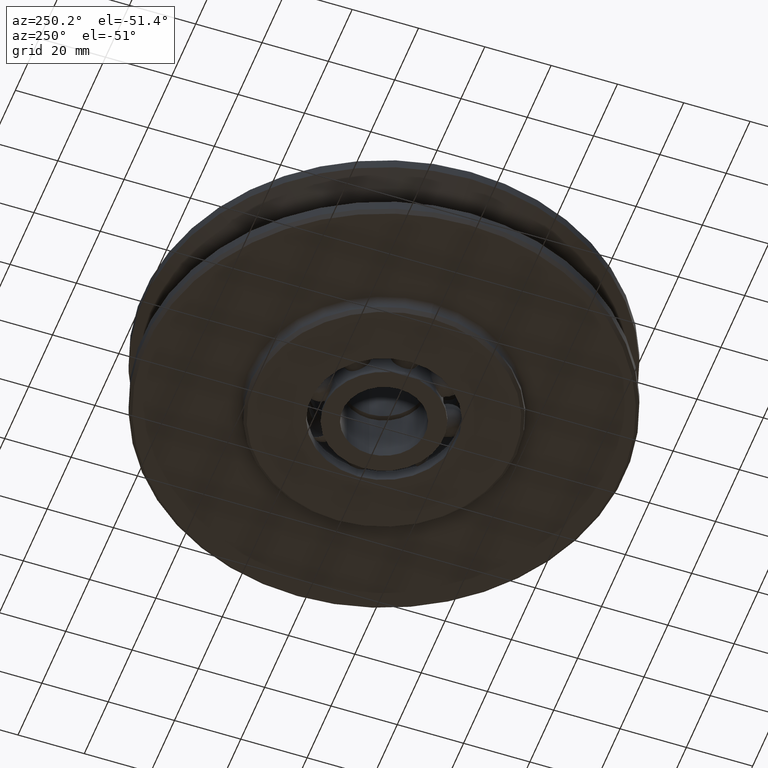
[diagram: clean part render]
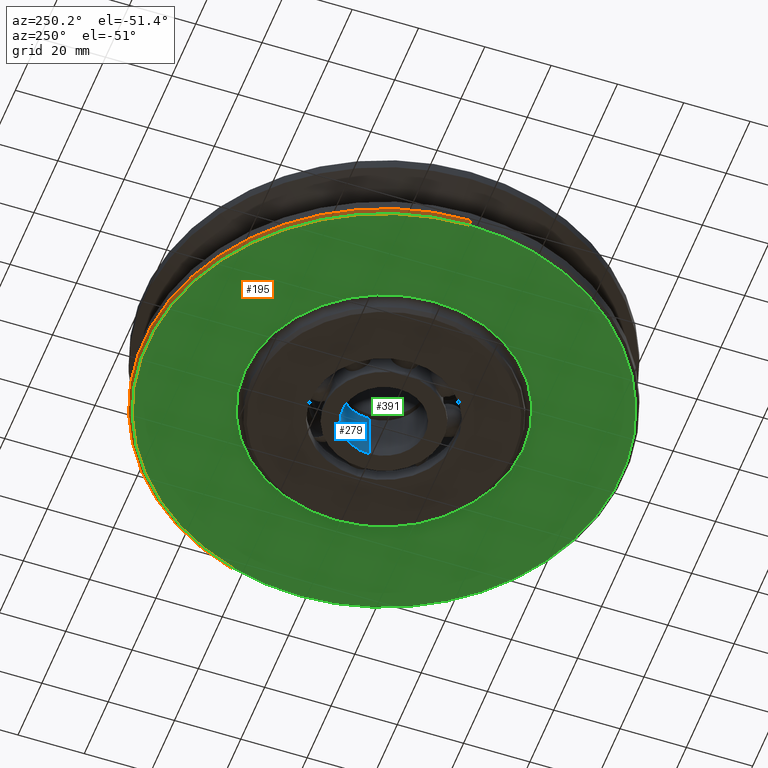
[diagram: same view with three faces highlighted in distinct colors, each labeled with its STEP entity id]
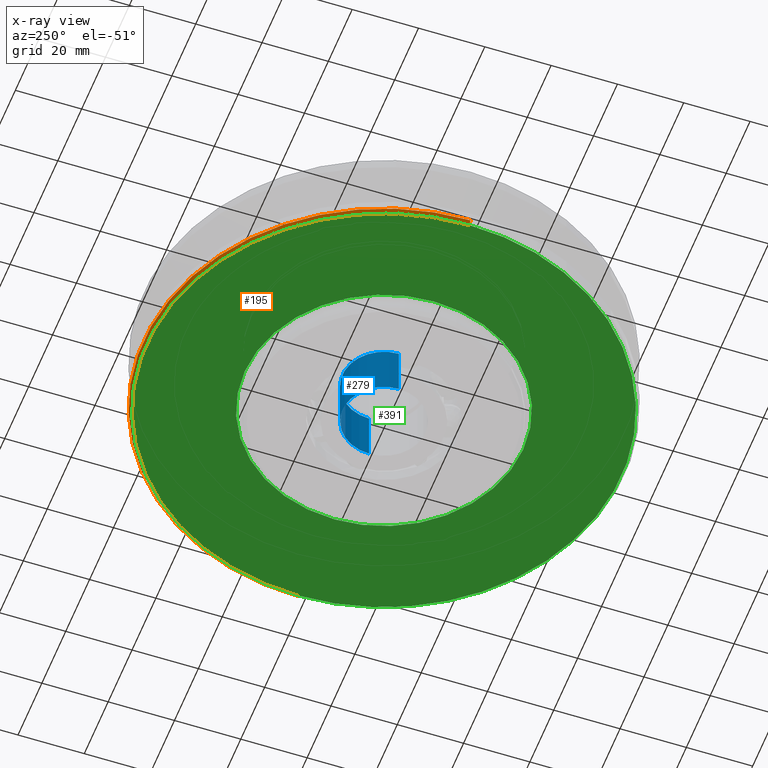
[diagram: x-ray of the same camera — body ghosted, the three highlighted faces saturated]
A machine part, auxiliary view with three faces highlighted in distinct colors.
The next image is the same camera in x-ray (body ghosted, the three faces saturated) — at least one of them is partly hidden behind the body in this view.
Their STEP definitions:

[orange] entity #195 — the highlighted conical surface has half-angle 45 deg.
#195=ADVANCED_FACE('',(#487),#488,.T.);
#487=FACE_OUTER_BOUND('',#897,.T.);
#488=CONICAL_SURFACE('',#898,72.0,0.785398163397448);
#897=EDGE_LOOP('',(#1411,#1412,#1413,#1414));
#898=AXIS2_PLACEMENT_3D('',#1415,#1416,#1417);
#1411=ORIENTED_EDGE('',*,*,#2669,.F.);
#1412=ORIENTED_EDGE('',*,*,#2670,.T.);
#1413=ORIENTED_EDGE('',*,*,#2671,.F.);
#1414=ORIENTED_EDGE('',*,*,#2666,.F.);
#1415=CARTESIAN_POINT('',(0.0,0.0,-11.5));
#1416=DIRECTION('',(-0.0,-0.0,1.0));
#1417=DIRECTION('',(1.0,0.0,0.0));
#2666=EDGE_CURVE('',#3278,#3280,#3281,.T.);
#2669=EDGE_CURVE('',#3284,#3278,#3285,.T.);
#2670=EDGE_CURVE('',#3284,#3286,#3287,.T.);
#2671=EDGE_CURVE('',#3280,#3286,#3288,.T.);
#3278=VERTEX_POINT('',#4803);
#3280=VERTEX_POINT('',#4806);
#3281=CIRCLE('',#4807,72.5);
#3284=VERTEX_POINT('',#4811);
#3285=LINE('',#4812,#4813);
#3286=VERTEX_POINT('',#4814);
#3287=CIRCLE('',#4815,71.5);
#3288=LINE('',#4816,#4817);
#4803=CARTESIAN_POINT('',(72.5,0.0,-11.0));
#4806=CARTESIAN_POINT('',(-72.5,8.87868929381831E-015,-11.0));
#4807=AXIS2_PLACEMENT_3D('',#7975,#7976,#7977);
#4811=CARTESIAN_POINT('',(71.5,0.0,-12.0));
#4812=CARTESIAN_POINT('',(72.0,-8.81745695386094E-015,-11.5));
#4813=VECTOR('',#7979,1.0);
#4814=CARTESIAN_POINT('',(-71.5,8.75622461390357E-015,-12.0));
#4815=AXIS2_PLACEMENT_3D('',#7980,#7981,#7982);
#4816=CARTESIAN_POINT('',(-72.0,8.81745695386094E-015,-11.5));
#4817=VECTOR('',#7983,1.0);
#7975=CARTESIAN_POINT('',(0.0,0.0,-11.0));
#7976=DIRECTION('',(0.0,0.0,1.0));
#7977=DIRECTION('',(1.0,0.0,0.0));
#7979=DIRECTION('',(0.707106781186547,-8.65956056235493E-017,0.707106781186548));
#7980=CARTESIAN_POINT('',(0.0,0.0,-12.0));
#7981=DIRECTION('',(0.0,0.0,1.0));
#7982=DIRECTION('',(1.0,0.0,0.0));
#7983=DIRECTION('',(0.707106781186547,-8.65956056235493E-017,-0.707106781186548));

[blue] entity #279 — the highlighted cylindrical surface (partial cylindrical patch) has radius 12.5 mm, axis along (0, 0, -1).
#279=ADVANCED_FACE('',(#623),#624,.F.);
#623=FACE_OUTER_BOUND('',#1033,.T.);
#624=CYLINDRICAL_SURFACE('',#1034,12.5);
#1033=EDGE_LOOP('',(#1899,#1900,#1901,#1902));
#1034=AXIS2_PLACEMENT_3D('',#1903,#1904,#1905);
#1899=ORIENTED_EDGE('',*,*,#2933,.T.);
#1900=ORIENTED_EDGE('',*,*,#2962,.F.);
#1901=ORIENTED_EDGE('',*,*,#2935,.T.);
#1902=ORIENTED_EDGE('',*,*,#2953,.F.);
#1903=CARTESIAN_POINT('',(0.0,0.0,-8.5));
#1904=DIRECTION('',(0.0,0.0,-1.0));
#1905=DIRECTION('',(1.0,0.0,0.0));
#2933=EDGE_CURVE('',#3722,#3723,#3724,.T.);
#2935=EDGE_CURVE('',#3727,#3725,#3728,.T.);
#2953=EDGE_CURVE('',#3722,#3725,#3754,.T.);
#2962=EDGE_CURVE('',#3727,#3723,#3763,.T.);
#3722=VERTEX_POINT('',#6867);
#3723=VERTEX_POINT('',#6868);
#3724=LINE('',#6869,#6870);
#3725=VERTEX_POINT('',#6871);
#3727=VERTEX_POINT('',#6873);
#3728=LINE('',#6874,#6875);
#3754=CIRCLE('',#6905,12.5);
#3763=CIRCLE('',#6914,12.5);
#6867=CARTESIAN_POINT('',(12.5,0.0,-17.0));
#6868=CARTESIAN_POINT('',(12.5,0.0,-1.0));
#6869=CARTESIAN_POINT('',(12.5,1.53080849893419E-015,-8.5));
#6870=VECTOR('',#8316,1.0);
#6871=CARTESIAN_POINT('',(-12.5,-1.53080849893419E-015,-17.0));
#6873=CARTESIAN_POINT('',(-12.5,-1.53080849893419E-015,-1.0));
#6874=CARTESIAN_POINT('',(-12.5,-1.53080849893419E-015,-8.5));
#6875=VECTOR('',#8320,1.0);
#6905=AXIS2_PLACEMENT_3D('',#8349,#8350,#8351);
#6914=AXIS2_PLACEMENT_3D('',#8364,#8365,#8366);
#8316=DIRECTION('',(-0.0,-0.0,1.0));
#8320=DIRECTION('',(-0.0,-0.0,-1.0));
#8349=CARTESIAN_POINT('',(0.0,0.0,-17.0));
#8350=DIRECTION('',(0.0,-0.0,1.0));
#8351=DIRECTION('',(1.0,0.0,0.0));
#8364=CARTESIAN_POINT('',(0.0,0.0,-1.0));
#8365=DIRECTION('',(0.0,0.0,-1.0));
#8366=DIRECTION('',(1.0,0.0,0.0));

[green] entity #391 — the highlighted planar face has unit normal (-0, 0, -1).
#391=ADVANCED_FACE('',(#804,#805),#806,.T.);
#804=FACE_OUTER_BOUND('',#1214,.T.);
#805=FACE_BOUND('',#1215,.T.);
#806=PLANE('',#1216);
#1214=EDGE_LOOP('',(#2515,#2516));
#1215=EDGE_LOOP('',(#2517,#2518));
#1216=AXIS2_PLACEMENT_3D('',#2519,#2520,#2521);
#2515=ORIENTED_EDGE('',*,*,#2670,.F.);
#2516=ORIENTED_EDGE('',*,*,#3093,.F.);
#2517=ORIENTED_EDGE('',*,*,#3091,.T.);
#2518=ORIENTED_EDGE('',*,*,#2676,.T.);
#2519=CARTESIAN_POINT('',(56.75,0.0,-12.0));
#2520=DIRECTION('',(-0.0,0.0,-1.0));
#2521=DIRECTION('',(-1.0,-0.0,0.0));
#2670=EDGE_CURVE('',#3284,#3286,#3287,.T.);
#2676=EDGE_CURVE('',#3291,#3295,#3297,.T.);
#3091=EDGE_CURVE('',#3295,#3291,#3908,.T.);
#3093=EDGE_CURVE('',#3286,#3284,#3910,.T.);
#3284=VERTEX_POINT('',#4811);
#3286=VERTEX_POINT('',#4814);
#3287=CIRCLE('',#4815,71.5);
#3291=VERTEX_POINT('',#4820);
#3295=VERTEX_POINT('',#4824);
#3297=CIRCLE('',#4826,42.0);
#3908=CIRCLE('',#7827,42.0);
#3910=CIRCLE('',#7829,71.5);
#4811=CARTESIAN_POINT('',(71.5,0.0,-12.0));
#4814=CARTESIAN_POINT('',(-71.5,8.75622461390357E-015,-12.0));
#4815=AXIS2_PLACEMENT_3D('',#7980,#7981,#7982);
#4820=CARTESIAN_POINT('',(-42.0,5.14351655641888E-015,-12.0));
#4824=CARTESIAN_POINT('',(42.0,0.0,-12.0));
#4826=AXIS2_PLACEMENT_3D('',#7993,#7994,#7995);
#7827=AXIS2_PLACEMENT_3D('',#8442,#8443,#8444);
#7829=AXIS2_PLACEMENT_3D('',#8445,#8446,#8447);
#7980=CARTESIAN_POINT('',(0.0,0.0,-12.0));
#7981=DIRECTION('',(0.0,0.0,1.0));
#7982=DIRECTION('',(1.0,0.0,0.0));
#7993=CARTESIAN_POINT('',(0.0,0.0,-12.0));
#7994=DIRECTION('',(0.0,0.0,1.0));
#7995=DIRECTION('',(1.0,0.0,0.0));
#8442=CARTESIAN_POINT('',(0.0,0.0,-12.0));
#8443=DIRECTION('',(0.0,0.0,1.0));
#8444=DIRECTION('',(1.0,0.0,0.0));
#8445=CARTESIAN_POINT('',(0.0,0.0,-12.0));
#8446=DIRECTION('',(0.0,0.0,1.0));
#8447=DIRECTION('',(1.0,0.0,0.0));